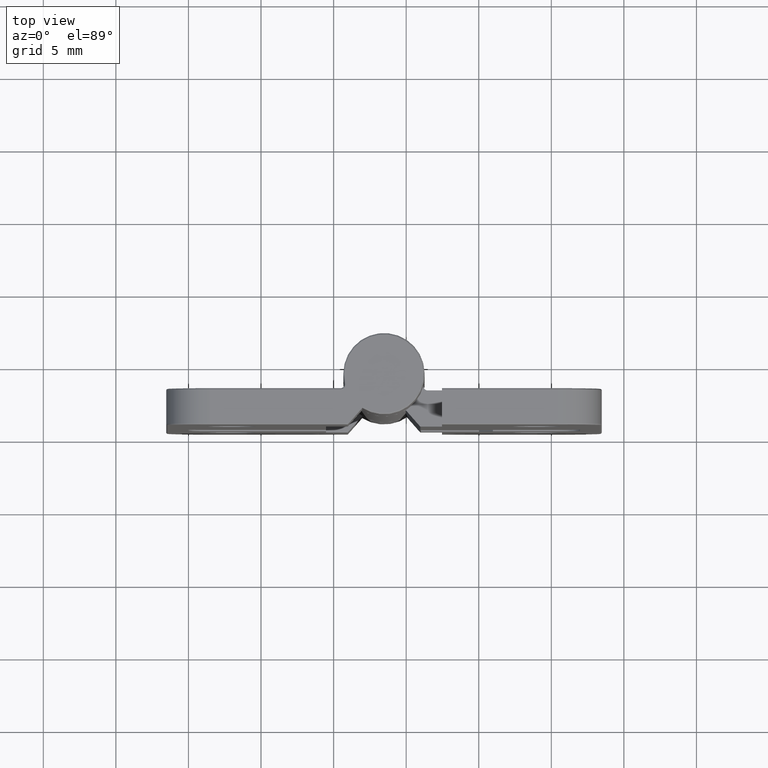
[diagram: clean part render]
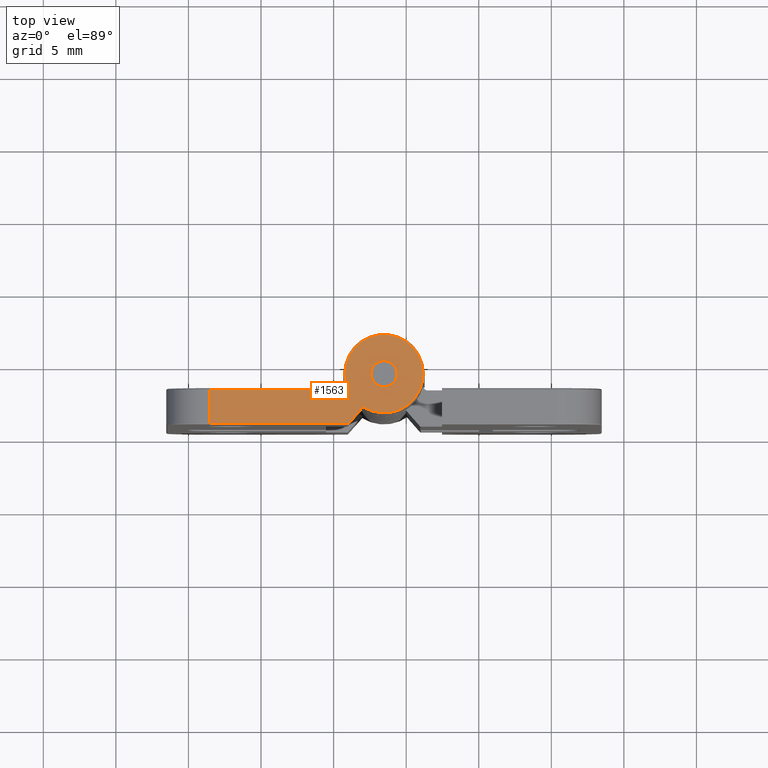
[diagram: same view with one face highlighted and labeled with its STEP entity id]
A machine part, top view. The second image highlights one B-rep face of the part: STEP entity #1563.
In plain terms, the highlighted planar face has unit normal (0, 0, 1).
Its self-contained STEP definition (entity closure, byte-faithful):
#66=FACE_BOUND('',#355,.T.);
#154=CIRCLE('',#1685,2.7);
#157=CIRCLE('',#1689,0.384210526315788);
#166=CIRCLE('',#1710,0.9);
#252=FACE_OUTER_BOUND('',#354,.T.);
#354=EDGE_LOOP('',(#1259,#1260,#1261,#1262,#1263,#1264));
#355=EDGE_LOOP('',(#1265));
#475=LINE('',#2503,#601);
#478=LINE('',#2520,#604);
#481=LINE('',#2546,#607);
#485=LINE('',#2569,#611);
#601=VECTOR('',#1979,9.58805282407669);
#604=VECTOR('',#1986,1.48124381821327);
#607=VECTOR('',#2019,9.);
#611=VECTOR('',#2057,2.3);
#735=VERTEX_POINT('',#2497);
#736=VERTEX_POINT('',#2502);
#738=VERTEX_POINT('',#2509);
#744=VERTEX_POINT('',#2535);
#745=VERTEX_POINT('',#2540);
#746=VERTEX_POINT('',#2544);
#749=VERTEX_POINT('',#2571);
#905=EDGE_CURVE('',#736,#735,#475,.T.);
#910=EDGE_CURVE('',#736,#738,#478,.T.);
#918=EDGE_CURVE('',#744,#738,#154,.T.);
#921=EDGE_CURVE('',#745,#744,#157,.T.);
#923=EDGE_CURVE('',#746,#745,#481,.T.);
#934=EDGE_CURVE('',#735,#746,#485,.T.);
#935=EDGE_CURVE('',#749,#749,#166,.T.);
#1259=ORIENTED_EDGE('',*,*,#905,.F.);
#1260=ORIENTED_EDGE('',*,*,#910,.T.);
#1261=ORIENTED_EDGE('',*,*,#918,.F.);
#1262=ORIENTED_EDGE('',*,*,#921,.F.);
#1263=ORIENTED_EDGE('',*,*,#923,.F.);
#1264=ORIENTED_EDGE('',*,*,#934,.F.);
#1265=ORIENTED_EDGE('',*,*,#935,.T.);
#1498=PLANE('',#1709);
#1563=ADVANCED_FACE('',(#252,#66),#1498,.T.);
#1685=AXIS2_PLACEMENT_3D('',#2537,#2005,#2006);
#1689=AXIS2_PLACEMENT_3D('',#2542,#2013,#2014);
#1709=AXIS2_PLACEMENT_3D('',#2570,#2058,#2059);
#1710=AXIS2_PLACEMENT_3D('',#2572,#2060,#2061);
#1979=DIRECTION('',(-1.,-7.83773951454306E-17,0.));
#1986=DIRECTION('',(0.660851295301948,0.75051686556515,0.));
#2005=DIRECTION('center_axis',(0.,0.,-1.));
#2006=DIRECTION('ref_axis',(0.813977108855373,0.580896949776334,0.));
#2013=DIRECTION('center_axis',(0.,0.,1.));
#2014=DIRECTION('ref_axis',(0.784882765533424,-0.619644288579023,0.));
#2019=DIRECTION('',(1.,0.,0.));
#2057=DIRECTION('',(0.,1.,0.));
#2058=DIRECTION('center_axis',(0.,0.,1.));
#2059=DIRECTION('ref_axis',(1.,0.,0.));
#2060=DIRECTION('center_axis',(0.,0.,-1.));
#2061=DIRECTION('ref_axis',(-1.,0.,0.));
#2497=CARTESIAN_POINT('',(-12.,0.099999999999999,20.));
#2502=CARTESIAN_POINT('',(-2.41194717592331,0.1,20.));
#2503=CARTESIAN_POINT('',(-11.8021417344313,0.0999999999999993,20.));
#2509=CARTESIAN_POINT('',(-1.43306527999907,1.21169846758318,20.));
#2520=CARTESIAN_POINT('',(-2.5,0.,20.));
#2535=CARTESIAN_POINT('',(-2.62627986348123,2.87337883959044,20.));
#2537=CARTESIAN_POINT('Origin',(0.,3.5,20.));
#2540=CARTESIAN_POINT('',(-3.,2.4,20.));
#2542=CARTESIAN_POINT('Origin',(-3.,2.78421052631579,20.));
#2544=CARTESIAN_POINT('',(-12.,2.4,20.));
#2546=CARTESIAN_POINT('',(-5.80214173443126,2.4,20.));
#2569=CARTESIAN_POINT('',(-12.,1.87415960455924,20.));
#2570=CARTESIAN_POINT('Origin',(-8.60428346886252,1.24831920911848,20.));
#2571=CARTESIAN_POINT('',(0.9,3.5,20.));
#2572=CARTESIAN_POINT('Origin',(0.,3.5,20.));